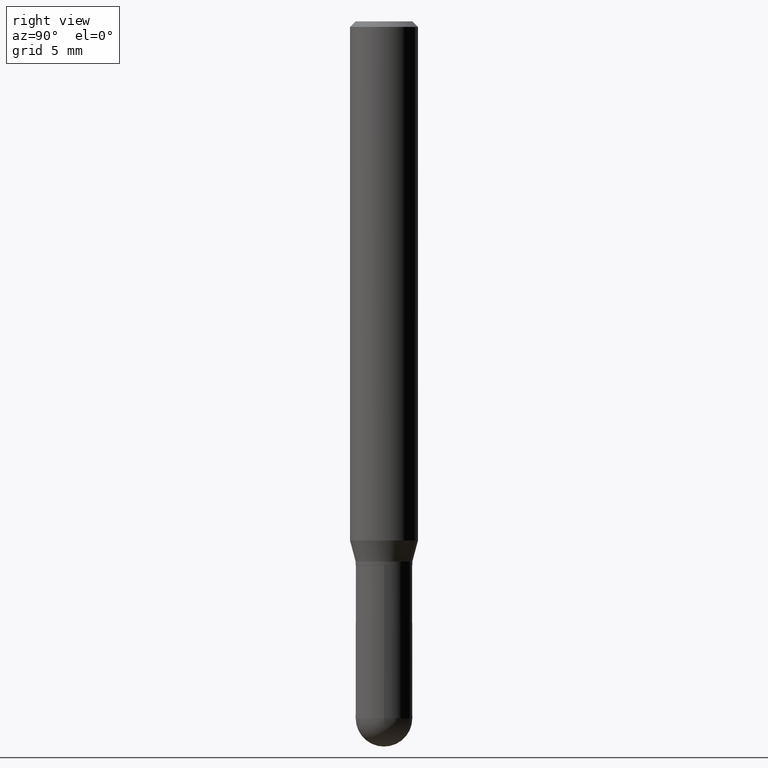
[diagram: clean part render]
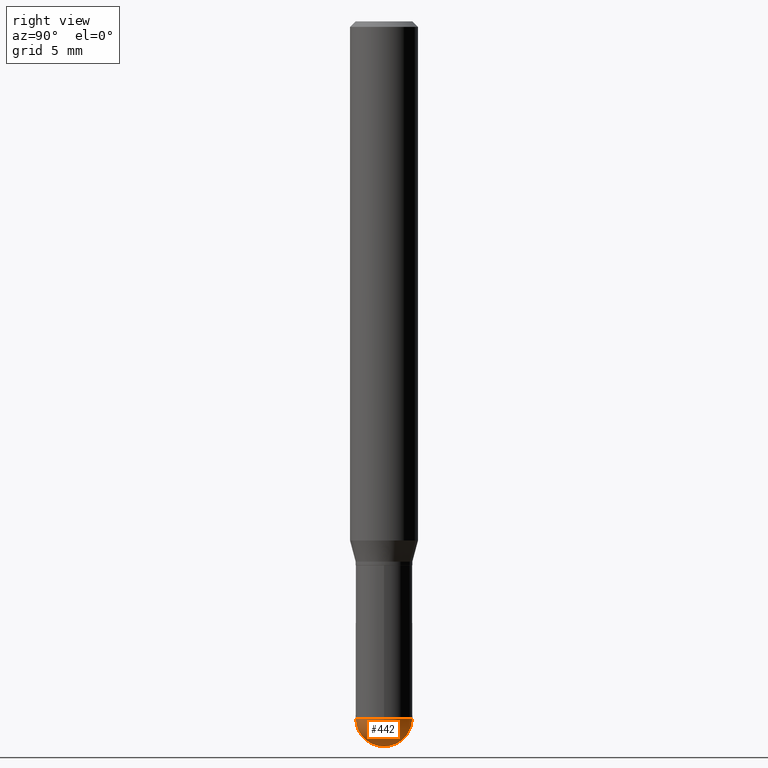
[diagram: same view with one face highlighted and labeled with its STEP entity id]
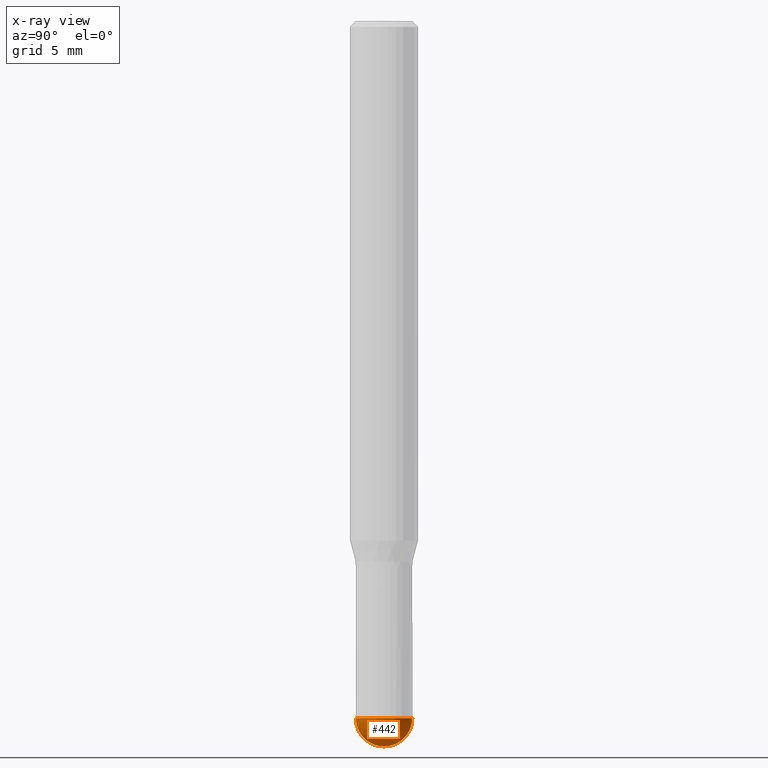
[diagram: x-ray of the same camera — body ghosted, the highlighted face saturated]
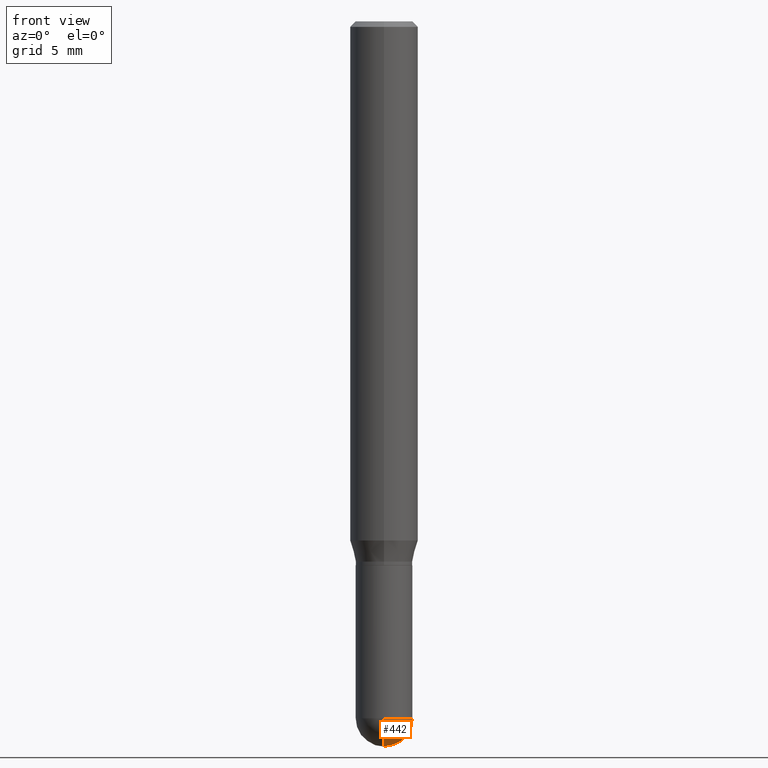
[diagram: same view with one face highlighted and labeled with its STEP entity id]
A machine part, right view. The second image highlights one B-rep face of the part: STEP entity #442.
The next image is the same camera in x-ray: the body ghosted, the highlighted face saturated — about 0% of this face is hidden behind the body in this view.
A second angle (front view) of the same face is appended — the face is thin or edge-on in the first view.
In plain terms, the highlighted spherical surface has radius 1.9837 mm.
Its self-contained STEP definition (entity closure, byte-faithful):
#14 = CARTESIAN_POINT ( 'NONE',  ( 4.693267649888723399E-29, -6.719842476623982487E-15, -1.921900000000000164 ) ) ;
#36 = CARTESIAN_POINT ( 'NONE',  ( 0.07810000000000000275, -6.519119381820976762E-15, -1.921900000000000164 ) ) ;
#43 = DIRECTION ( 'NONE',  ( -1.000000000000000000, 7.105427357601001070E-15, -4.926315508542082329E-29 ) ) ;
#54 = CARTESIAN_POINT ( 'NONE',  ( 4.887598188011028267E-29, -6.987744923436962171E-15, -2.000000000000000000 ) ) ;
#67 = CARTESIAN_POINT ( 'NONE',  ( -5.549338766285910317E-16, -0.07810000000000670572, -1.921899999999999720 ) ) ;
#87 = DIRECTION ( 'NONE',  ( -1.000000000000000000, 6.982962677686265922E-15, -4.883557194083112901E-29 ) ) ;
#114 = CARTESIAN_POINT ( 'NONE',  ( 4.693267649888723399E-29, -6.719842476623982487E-15, -1.921900000000000164 ) ) ;
#143 = CIRCLE ( 'NONE', #366, 0.07810000000000000275 ) ;
#155 = VERTEX_POINT ( 'NONE', #421 ) ;
#157 = VERTEX_POINT ( 'NONE', #67 ) ;
#160 = AXIS2_PLACEMENT_3D ( 'NONE', #114, #43, #306 ) ;
#167 = AXIS2_PLACEMENT_3D ( 'NONE', #215, #338, #497 ) ;
#168 = CIRCLE ( 'NONE', #495, 0.07809999999999996112 ) ;
#197 = ORIENTED_EDGE ( 'NONE', *, *, #296, .F. ) ;
#199 = SPHERICAL_SURFACE ( 'NONE', #461, 0.07809999999999996112 ) ;
#215 = CARTESIAN_POINT ( 'NONE',  ( 4.699946498607214373E-29, -6.710277985122641264E-15, -1.921900000000000164 ) ) ;
#218 = CIRCLE ( 'NONE', #160, 0.07809999999999996112 ) ;
#220 = ORIENTED_EDGE ( 'NONE', *, *, #232, .F. ) ;
#223 = DIRECTION ( 'NONE',  ( -2.445468806185136597E-29, 3.491481338843145583E-15, 1.000000000000000000 ) ) ;
#229 = EDGE_LOOP ( 'NONE', ( #313, #390, #197, #220 ) ) ;
#232 = EDGE_CURVE ( 'NONE', #157, #400, #393, .T. ) ;
#288 = DIRECTION ( 'NONE',  ( 6.982962677686265922E-15, 1.000000000000000000, -3.497884755011862382E-15 ) ) ;
#296 = EDGE_CURVE ( 'NONE', #400, #155, #143, .T. ) ;
#306 = DIRECTION ( 'NONE',  ( -7.105427357601000281E-15, -1.000000000000000000, 0.000000000000000000 ) ) ;
#313 = ORIENTED_EDGE ( 'NONE', *, *, #372, .F. ) ;
#318 = EDGE_CURVE ( 'NONE', #506, #155, #168, .T. ) ;
#338 = DIRECTION ( 'NONE',  ( -2.445468806185136597E-29, 3.491481338843145583E-15, 1.000000000000000000 ) ) ;
#346 = CARTESIAN_POINT ( 'NONE',  ( 4.693267649888723399E-29, -6.719842476623982487E-15, -1.921900000000000164 ) ) ;
#365 = FACE_OUTER_BOUND ( 'NONE', #229, .T. ) ;
#366 = AXIS2_PLACEMENT_3D ( 'NONE', #472, #223, #384 ) ;
#372 = EDGE_CURVE ( 'NONE', #506, #157, #218, .T. ) ;
#384 = DIRECTION ( 'NONE',  ( 1.000000000000000000, -6.982962677686266711E-15, 0.000000000000000000 ) ) ;
#390 = ORIENTED_EDGE ( 'NONE', *, *, #318, .T. ) ;
#393 = CIRCLE ( 'NONE', #167, 0.07810000000000000275 ) ;
#400 = VERTEX_POINT ( 'NONE', #36 ) ;
#421 = CARTESIAN_POINT ( 'NONE',  ( 5.453693851273441764E-16, 0.07809999999999325815, -1.921900000000000386 ) ) ;
#431 = DIRECTION ( 'NONE',  ( 6.982962677686266711E-15, 1.000000000000000000, 0.000000000000000000 ) ) ;
#442 = ADVANCED_FACE ( 'NONE', ( #365 ), #199, .T. ) ;
#461 = AXIS2_PLACEMENT_3D ( 'NONE', #14, #87, #288 ) ;
#472 = CARTESIAN_POINT ( 'NONE',  ( 4.699946498607214373E-29, -6.710277985122641264E-15, -1.921900000000000164 ) ) ;
#495 = AXIS2_PLACEMENT_3D ( 'NONE', #346, #511, #431 ) ;
#497 = DIRECTION ( 'NONE',  ( 1.000000000000000000, -6.982962677686266711E-15, 0.000000000000000000 ) ) ;
#506 = VERTEX_POINT ( 'NONE', #54 ) ;
#511 = DIRECTION ( 'NONE',  ( 1.000000000000000000, -6.982962677686265922E-15, 4.883557194083112340E-29 ) ) ;